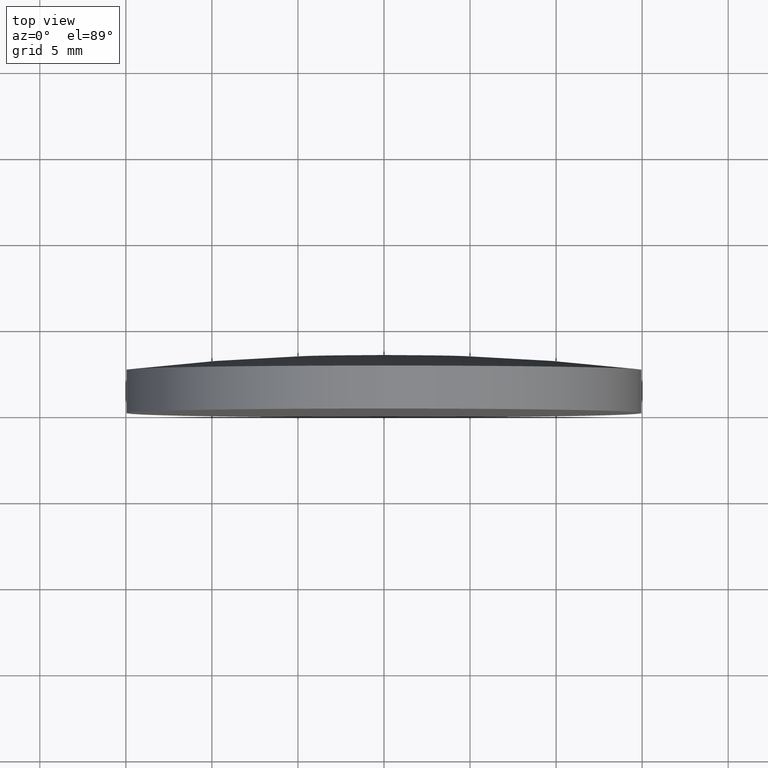
[diagram: clean part render]
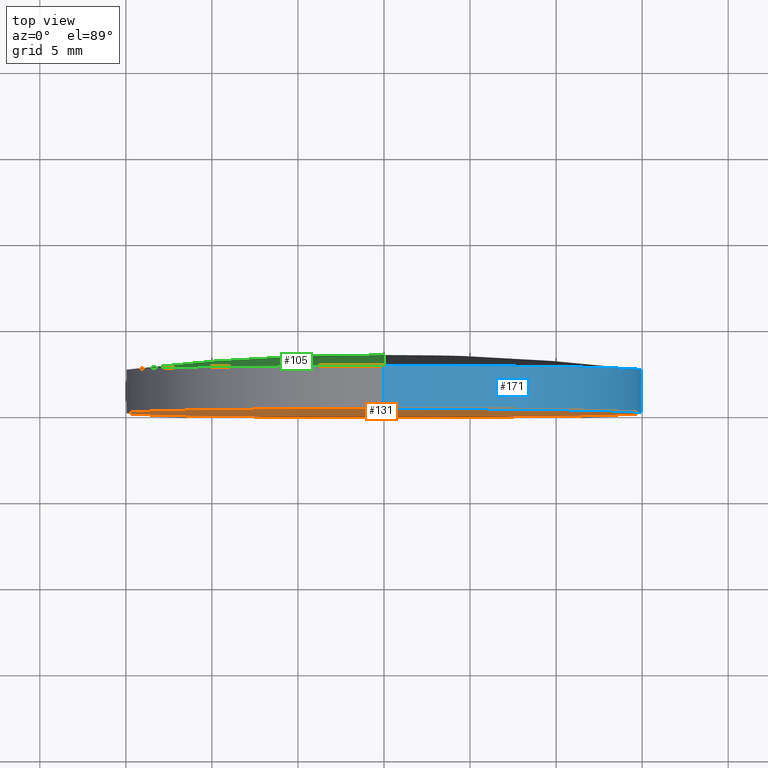
[diagram: same view with three faces highlighted in distinct colors, each labeled with its STEP entity id]
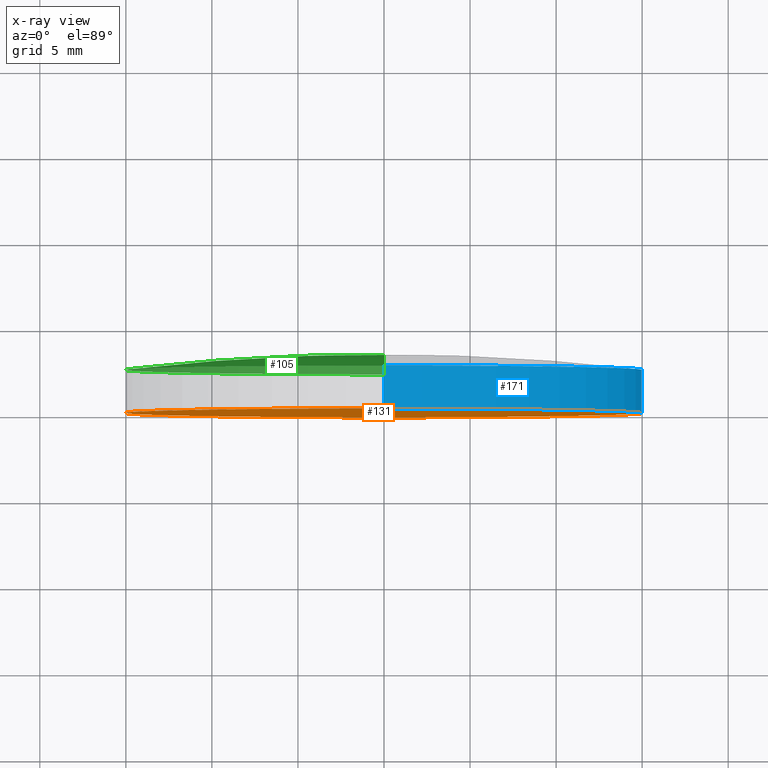
[diagram: x-ray of the same camera — body ghosted, the three highlighted faces saturated]
A machine part, top view with three faces highlighted in distinct colors.
The next image is the same camera in x-ray (body ghosted, the three faces saturated) — at least one of them is partly hidden behind the body in this view.
Their STEP definitions:

[orange] entity #131 — the highlighted planar face has unit normal (0, -1, 0).
#5 = DIRECTION ( 'NONE',  ( 0.000000000000000000, -1.000000000000000000, 0.000000000000000000 ) ) ;
#10 = CIRCLE ( 'NONE', #27, 15.00000000000000000 ) ;
#11 = ORIENTED_EDGE ( 'NONE', *, *, #92, .F. ) ;
#19 = PLANE ( 'NONE',  #61 ) ;
#20 = VERTEX_POINT ( 'NONE', #24 ) ;
#24 = CARTESIAN_POINT ( 'NONE',  ( 0.000000000000000000, -1.734723475976807094E-15, 15.00000000000000000 ) ) ;
#27 = AXIS2_PLACEMENT_3D ( 'NONE', #51, #170, #188 ) ;
#37 = DIRECTION ( 'NONE',  ( 0.000000000000000000, -0.000000000000000000, -1.000000000000000000 ) ) ;
#44 = DIRECTION ( 'NONE',  ( -0.000000000000000000, 1.000000000000000000, -0.000000000000000000 ) ) ;
#48 = EDGE_CURVE ( 'NONE', #20, #173, #10, .T. ) ;
#51 = CARTESIAN_POINT ( 'NONE',  ( 0.000000000000000000, -1.734723475976807094E-15, 0.000000000000000000 ) ) ;
#61 = AXIS2_PLACEMENT_3D ( 'NONE', #124, #5, #37 ) ;
#79 = FACE_OUTER_BOUND ( 'NONE', #128, .T. ) ;
#81 = CARTESIAN_POINT ( 'NONE',  ( 1.836970198721029589E-15, -1.734723475976807094E-15, -15.00000000000000000 ) ) ;
#92 = EDGE_CURVE ( 'NONE', #173, #20, #191, .T. ) ;
#123 = CARTESIAN_POINT ( 'NONE',  ( 0.000000000000000000, -1.734723475976807094E-15, 0.000000000000000000 ) ) ;
#124 = CARTESIAN_POINT ( 'NONE',  ( 0.000000000000000000, -9.184850993605147944E-16, 0.000000000000000000 ) ) ;
#125 = AXIS2_PLACEMENT_3D ( 'NONE', #123, #44, #190 ) ;
#128 = EDGE_LOOP ( 'NONE', ( #157, #11 ) ) ;
#131 = ADVANCED_FACE ( 'NONE', ( #79 ), #19, .T. ) ;
#157 = ORIENTED_EDGE ( 'NONE', *, *, #48, .F. ) ;
#170 = DIRECTION ( 'NONE',  ( -0.000000000000000000, 1.000000000000000000, -0.000000000000000000 ) ) ;
#173 = VERTEX_POINT ( 'NONE', #81 ) ;
#188 = DIRECTION ( 'NONE',  ( 0.000000000000000000, 0.000000000000000000, 1.000000000000000000 ) ) ;
#190 = DIRECTION ( 'NONE',  ( 0.000000000000000000, 0.000000000000000000, 1.000000000000000000 ) ) ;
#191 = CIRCLE ( 'NONE', #125, 15.00000000000000000 ) ;

[blue] entity #171 — the highlighted cylindrical surface (partial cylindrical patch) has radius 15 mm, axis along (-0, 1, -0).
#2 = DIRECTION ( 'NONE',  ( -0.000000000000000000, 1.000000000000000000, -0.000000000000000000 ) ) ;
#4 = VECTOR ( 'NONE', #68, 1000.000000000000000 ) ;
#6 = CARTESIAN_POINT ( 'NONE',  ( 0.000000000000000000, 3.370000000000000107, 0.000000000000000000 ) ) ;
#8 = ORIENTED_EDGE ( 'NONE', *, *, #121, .F. ) ;
#9 = CARTESIAN_POINT ( 'NONE',  ( 1.836970198721029589E-15, 3.370000000000000107, -15.00000000000000000 ) ) ;
#10 = CIRCLE ( 'NONE', #27, 15.00000000000000000 ) ;
#20 = VERTEX_POINT ( 'NONE', #24 ) ;
#22 = DIRECTION ( 'NONE',  ( 0.000000000000000000, 0.000000000000000000, 1.000000000000000000 ) ) ;
#24 = CARTESIAN_POINT ( 'NONE',  ( 0.000000000000000000, -1.734723475976807094E-15, 15.00000000000000000 ) ) ;
#27 = AXIS2_PLACEMENT_3D ( 'NONE', #51, #170, #188 ) ;
#33 = CARTESIAN_POINT ( 'NONE',  ( 0.000000000000000000, 2.499999999999998224, 0.000000000000000000 ) ) ;
#41 = VERTEX_POINT ( 'NONE', #195 ) ;
#47 = DIRECTION ( 'NONE',  ( -0.000000000000000000, 1.000000000000000000, -0.000000000000000000 ) ) ;
#48 = EDGE_CURVE ( 'NONE', #20, #173, #10, .T. ) ;
#51 = CARTESIAN_POINT ( 'NONE',  ( 0.000000000000000000, -1.734723475976807094E-15, 0.000000000000000000 ) ) ;
#53 = LINE ( 'NONE', #9, #4 ) ;
#63 = CARTESIAN_POINT ( 'NONE',  ( 1.836970198721026039E-15, 2.500000000000000444, -14.99999999999996980 ) ) ;
#66 = EDGE_CURVE ( 'NONE', #20, #41, #76, .T. ) ;
#68 = DIRECTION ( 'NONE',  ( -0.000000000000000000, 1.000000000000000000, -0.000000000000000000 ) ) ;
#76 = LINE ( 'NONE', #136, #182 ) ;
#81 = CARTESIAN_POINT ( 'NONE',  ( 1.836970198721029589E-15, -1.734723475976807094E-15, -15.00000000000000000 ) ) ;
#96 = DIRECTION ( 'NONE',  ( -0.000000000000000000, 1.000000000000000000, -0.000000000000000000 ) ) ;
#99 = CIRCLE ( 'NONE', #154, 15.00000000000000000 ) ;
#101 = EDGE_LOOP ( 'NONE', ( #113, #129, #8, #149 ) ) ;
#110 = FACE_OUTER_BOUND ( 'NONE', #101, .T. ) ;
#113 = ORIENTED_EDGE ( 'NONE', *, *, #48, .T. ) ;
#121 = EDGE_CURVE ( 'NONE', #41, #177, #99, .T. ) ;
#129 = ORIENTED_EDGE ( 'NONE', *, *, #189, .T. ) ;
#136 = CARTESIAN_POINT ( 'NONE',  ( 0.000000000000000000, 3.370000000000000107, 15.00000000000000000 ) ) ;
#149 = ORIENTED_EDGE ( 'NONE', *, *, #66, .F. ) ;
#154 = AXIS2_PLACEMENT_3D ( 'NONE', #33, #47, #156 ) ;
#156 = DIRECTION ( 'NONE',  ( 0.000000000000000000, 0.000000000000000000, 1.000000000000000000 ) ) ;
#170 = DIRECTION ( 'NONE',  ( -0.000000000000000000, 1.000000000000000000, -0.000000000000000000 ) ) ;
#171 = ADVANCED_FACE ( 'NONE', ( #110 ), #175, .T. ) ;
#173 = VERTEX_POINT ( 'NONE', #81 ) ;
#175 = CYLINDRICAL_SURFACE ( 'NONE', #194, 15.00000000000000000 ) ;
#177 = VERTEX_POINT ( 'NONE', #63 ) ;
#182 = VECTOR ( 'NONE', #2, 1000.000000000000000 ) ;
#188 = DIRECTION ( 'NONE',  ( 0.000000000000000000, 0.000000000000000000, 1.000000000000000000 ) ) ;
#189 = EDGE_CURVE ( 'NONE', #173, #177, #53, .T. ) ;
#194 = AXIS2_PLACEMENT_3D ( 'NONE', #6, #96, #22 ) ;
#195 = CARTESIAN_POINT ( 'NONE',  ( 0.000000000000000000, 2.500000000000000444, 14.99999999999996980 ) ) ;

[green] entity #105 — the highlighted toroidal blend (fillet) surface has major radius 0.0293 mm and minor (blend) radius 129.24 mm.
#7 = EDGE_CURVE ( 'NONE', #177, #41, #111, .T. ) ;
#14 = CIRCLE ( 'NONE', #91, 129.2400000000000375 ) ;
#38 = TOROIDAL_SURFACE ( 'NONE', #162, 0.02931019276951850328, 129.2400000000000375 ) ;
#41 = VERTEX_POINT ( 'NONE', #195 ) ;
#50 = DIRECTION ( 'NONE',  ( 1.000000000000000000, 0.000000000000000000, 1.224646799147353207E-16 ) ) ;
#59 = CARTESIAN_POINT ( 'NONE',  ( 0.000000000000000000, 3.370000000000000107, 0.000000000000000000 ) ) ;
#60 = DIRECTION ( 'NONE',  ( -0.000000000000000000, 1.000000000000000000, -0.000000000000000000 ) ) ;
#63 = CARTESIAN_POINT ( 'NONE',  ( 1.836970198721026039E-15, 2.500000000000000444, -14.99999999999996980 ) ) ;
#65 = ORIENTED_EDGE ( 'NONE', *, *, #179, .F. ) ;
#70 = VERTEX_POINT ( 'NONE', #59 ) ;
#78 = CIRCLE ( 'NONE', #102, 129.2400000000000375 ) ;
#91 = AXIS2_PLACEMENT_3D ( 'NONE', #127, #158, #143 ) ;
#93 = CARTESIAN_POINT ( 'NONE',  ( 0.000000000000000000, -125.8699966763873448, 0.000000000000000000 ) ) ;
#95 = AXIS2_PLACEMENT_3D ( 'NONE', #98, #160, #145 ) ;
#98 = CARTESIAN_POINT ( 'NONE',  ( 0.000000000000000000, 2.499999999999998224, 0.000000000000000000 ) ) ;
#102 = AXIS2_PLACEMENT_3D ( 'NONE', #193, #50, #163 ) ;
#105 = ADVANCED_FACE ( 'NONE', ( #109 ), #38, .T. ) ;
#109 = FACE_OUTER_BOUND ( 'NONE', #185, .T. ) ;
#111 = CIRCLE ( 'NONE', #95, 15.00000000000000000 ) ;
#127 = CARTESIAN_POINT ( 'NONE',  ( 0.000000000000000000, -125.8699966763873448, 0.02931019276951850328 ) ) ;
#139 = DIRECTION ( 'NONE',  ( 0.000000000000000000, 0.000000000000000000, 1.000000000000000000 ) ) ;
#140 = EDGE_CURVE ( 'NONE', #41, #70, #14, .T. ) ;
#143 = DIRECTION ( 'NONE',  ( 0.000000000000000000, 0.000000000000000000, 1.000000000000000000 ) ) ;
#145 = DIRECTION ( 'NONE',  ( 0.000000000000000000, 0.000000000000000000, 1.000000000000000000 ) ) ;
#158 = DIRECTION ( 'NONE',  ( -1.000000000000000000, 0.000000000000000000, 0.000000000000000000 ) ) ;
#160 = DIRECTION ( 'NONE',  ( -0.000000000000000000, 1.000000000000000000, -0.000000000000000000 ) ) ;
#162 = AXIS2_PLACEMENT_3D ( 'NONE', #93, #60, #139 ) ;
#163 = DIRECTION ( 'NONE',  ( 1.224646799147353454E-16, 0.000000000000000000, -1.000000000000000000 ) ) ;
#177 = VERTEX_POINT ( 'NONE', #63 ) ;
#179 = EDGE_CURVE ( 'NONE', #177, #70, #78, .T. ) ;
#185 = EDGE_LOOP ( 'NONE', ( #65, #192, #199 ) ) ;
#192 = ORIENTED_EDGE ( 'NONE', *, *, #7, .T. ) ;
#193 = CARTESIAN_POINT ( 'NONE',  ( 3.589463375758273298E-18, -125.8699966763873448, -0.02931019276951850328 ) ) ;
#195 = CARTESIAN_POINT ( 'NONE',  ( 0.000000000000000000, 2.500000000000000444, 14.99999999999996980 ) ) ;
#199 = ORIENTED_EDGE ( 'NONE', *, *, #140, .T. ) ;